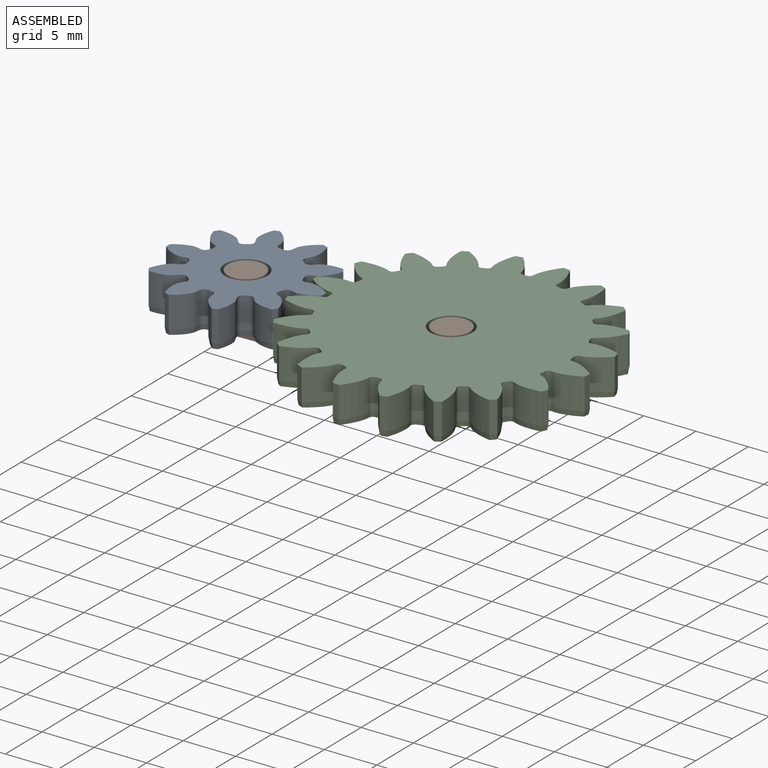
[diagram: assembled view]
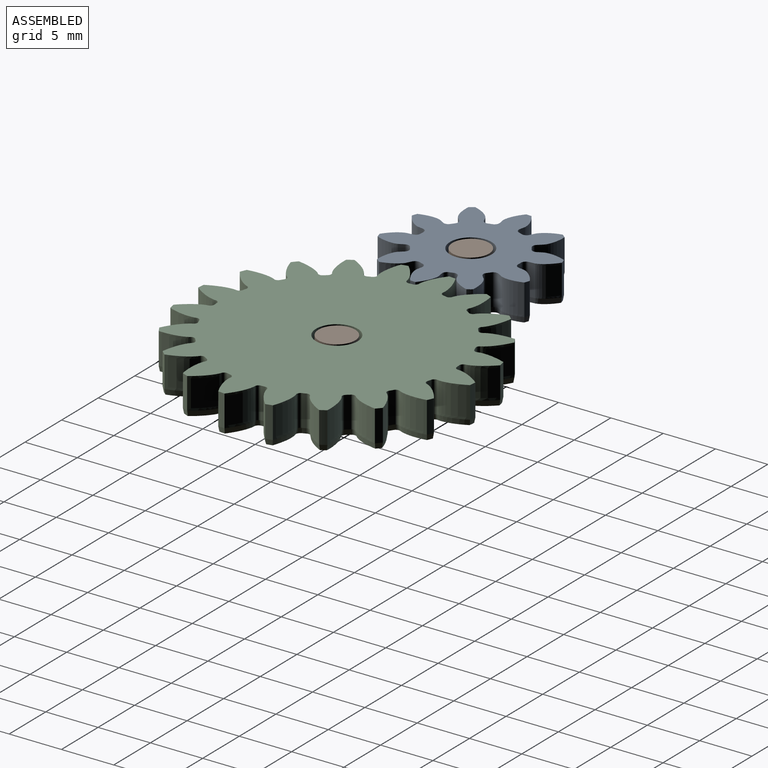
[diagram: assembled view, second angle]
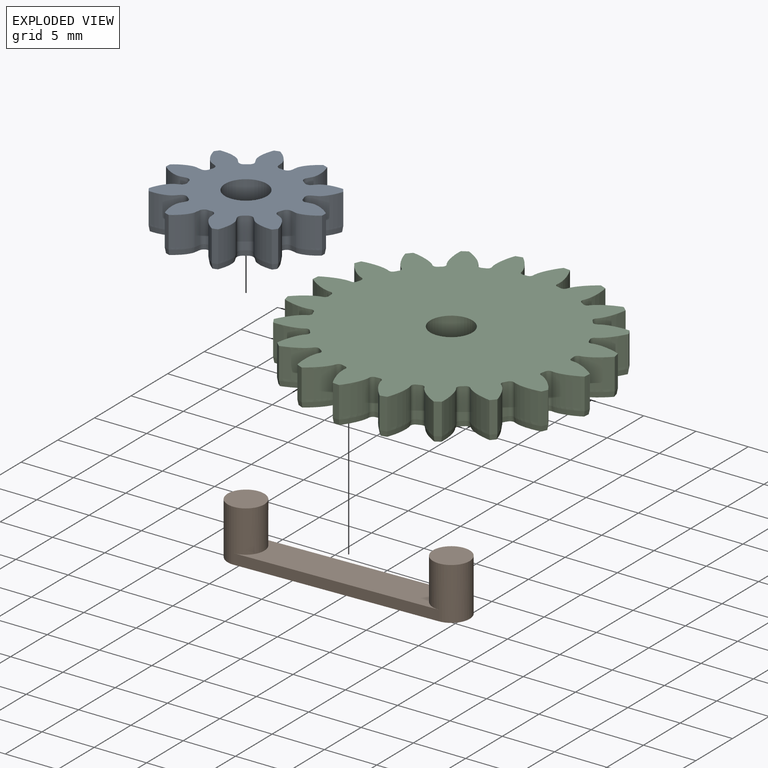
[diagram: exploded view]
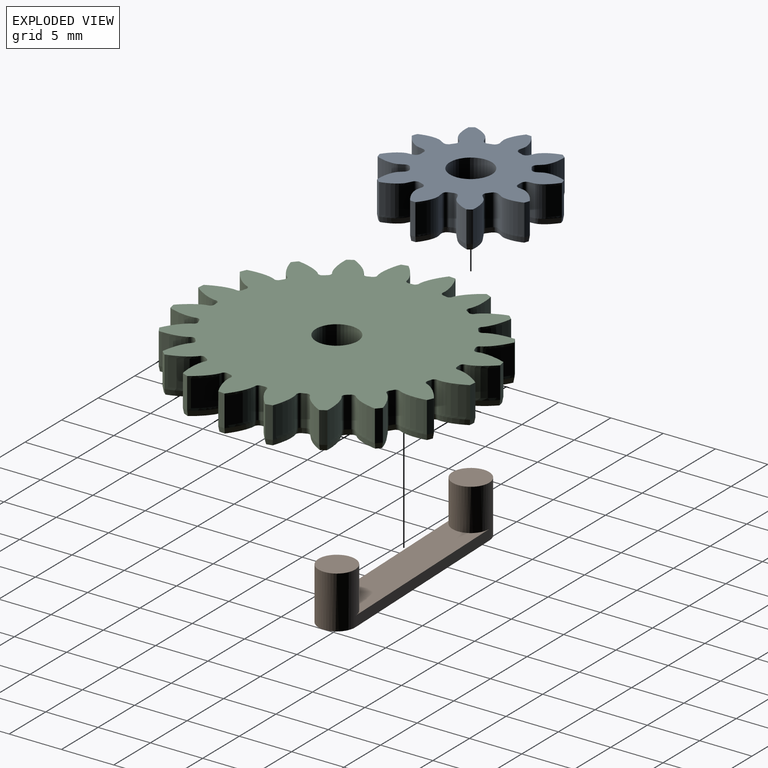
[diagram: exploded view, second angle]
ASSEMBLY  parts=3 mates=2
PART A: 124 faces, bbox 14.9x3.8x15.5 mm
  f0: cylinder r=7.62mm len=3mm, axis (0,1,0), area 1.6mm2, adj f9,f52,f59,f64
  f1: cylinder r=7.62mm len=3mm, axis (0,1,0), area 1.6mm2, adj f9,f12,f54,f70
  f2: cylinder r=7.62mm len=3mm, axis (0,1,0), area 1.6mm2, adj f9,f42,f49,f112
  f3: cylinder r=7.62mm len=3mm, axis (0,1,0), area 1.6mm2, adj f9,f44,f57,f118
  f4: cylinder r=7.62mm len=3mm, axis (0,1,0), area 1.6mm2, adj f9,f32,f39,f88
  f5: cylinder r=7.62mm len=3mm, axis (0,1,0), area 1.6mm2, adj f9,f27,f34,f94
  f6: cylinder r=7.62mm len=3mm, axis (0,1,0), area 1.6mm2, adj f9,f22,f29,f100
  f7: cylinder r=7.62mm len=3mm, axis (0,1,0), area 1.6mm2, adj f9,f24,f47,f106
  f8: cylinder r=7.62mm len=3mm, axis (0,1,0), area 1.6mm2, adj f9,f19,f37,f82
  f9: plane 15.27x14.68mm, normal (0,-1,0), area 109mm2, adj f0,f1,f2,f3,f4,f5,f6,f7
  f10: cylinder r=2mm len=4mm, axis (0,1,0), area 37.7mm2, adj f9,f122
  f11: cylinder r=7.62mm len=3mm, axis (0,1,0), area 1.6mm2, adj f9,f14,f17,f76
  f12: extruded ~3x2.16mm, area 8.2mm2, adj f1,f9,f15,f71
  f13: cylinder r=4.76mm len=3mm, axis (0,1,0), area 1.1mm2, adj f9,f15,f16,f73
  f14: extruded ~3x2.16mm, area 8.2mm2, adj f9,f11,f16,f75
  f15: cylinder r=0.46mm len=3mm, axis (0,1,0), area 2mm2, adj f9,f12,f13,f72
  f16: cylinder r=0.46mm len=3mm, axis (0,1,0), area 2mm2, adj f9,f13,f14,f74
  f17: extruded ~3x2.6mm, area 8.2mm2, adj f9,f11,f20,f77
  f18: cylinder r=4.76mm len=3mm, axis (0,1,0), area 1.1mm2, adj f9,f20,f21,f79
  f19: extruded ~3x2.44mm, area 8.2mm2, adj f8,f9,f21,f81
  f20: cylinder r=0.46mm len=3mm, axis (0,1,0), area 2mm2, adj f9,f17,f18,f78
  f21: cylinder r=0.46mm len=3mm, axis (0,1,0), area 2mm2, adj f9,f18,f19,f80
  f22: extruded ~3x2.16mm, area 8.2mm2, adj f6,f9,f25,f101
  f23: cylinder r=4.76mm len=3mm, axis (0,1,0), area 1.1mm2, adj f9,f25,f26,f103
  f24: extruded ~3x2.16mm, area 8.2mm2, adj f7,f9,f26,f105
  f25: cylinder r=0.46mm len=3mm, axis (0,1,0), area 2mm2, adj f9,f22,f23,f102
  f26: cylinder r=0.46mm len=3mm, axis (0,1,0), area 2mm2, adj f9,f23,f24,f104
  f27: extruded ~3x2.44mm, area 8.2mm2, adj f5,f9,f30,f95
  f28: cylinder r=4.76mm len=3mm, axis (0,1,0), area 1.1mm2, adj f9,f30,f31,f97
  f29: extruded ~3x2.6mm, area 8.2mm2, adj f6,f9,f31,f99
  f30: cylinder r=0.46mm len=3mm, axis (0,1,0), area 2mm2, adj f9,f27,f28,f96
  f31: cylinder r=0.46mm len=3mm, axis (0,1,0), area 2mm2, adj f9,f28,f29,f98
  f32: extruded ~3x2.5mm, area 8.2mm2, adj f4,f9,f35,f89
  f33: cylinder r=4.76mm len=3mm, axis (0,1,0), area 1.1mm2, adj f9,f35,f36,f91
  f34: extruded ~3x2.05mm, area 8.2mm2, adj f5,f9,f36,f93
  f35: cylinder r=0.46mm len=3mm, axis (0,1,0), area 2mm2, adj f9,f32,f33,f90
  f36: cylinder r=0.46mm len=3mm, axis (0,1,0), area 2mm2, adj f9,f33,f34,f92
  f37: extruded ~3x2.05mm, area 8.2mm2, adj f8,f9,f40,f83
  f38: cylinder r=4.76mm len=3mm, axis (0,1,0), area 1.1mm2, adj f9,f40,f41,f85
  f39: extruded ~3x2.5mm, area 8.2mm2, adj f4,f9,f41,f87
  f40: cylinder r=0.46mm len=3mm, axis (0,1,0), area 2mm2, adj f9,f37,f38,f84
  f41: cylinder r=0.46mm len=3mm, axis (0,1,0), area 2mm2, adj f9,f38,f39,f86
  f42: extruded ~3x2.05mm, area 8.2mm2, adj f2,f9,f45,f113
  f43: cylinder r=4.76mm len=3mm, axis (0,1,0), area 1.1mm2, adj f9,f45,f46,f115
  f44: extruded ~3x2.5mm, area 8.2mm2, adj f3,f9,f46,f117
  f45: cylinder r=0.46mm len=3mm, axis (0,1,0), area 2mm2, adj f9,f42,f43,f114
  f46: cylinder r=0.46mm len=3mm, axis (0,1,0), area 2mm2, adj f9,f43,f44,f116
  f47: extruded ~3x2.6mm, area 8.2mm2, adj f7,f9,f50,f107
  f48: cylinder r=4.76mm len=3mm, axis (0,1,0), area 1.1mm2, adj f9,f50,f51,f109
  f49: extruded ~3x2.44mm, area 8.2mm2, adj f2,f9,f51,f111
  f50: cylinder r=0.46mm len=3mm, axis (0,1,0), area 2mm2, adj f9,f47,f48,f108
  f51: cylinder r=0.46mm len=3mm, axis (0,1,0), area 2mm2, adj f9,f48,f49,f110
  f52: extruded ~3x2.44mm, area 8.2mm2, adj f0,f9,f55,f65
  f53: cylinder r=4.76mm len=3mm, axis (0,1,0), area 1.1mm2, adj f9,f55,f56,f67
  f54: extruded ~3x2.6mm, area 8.2mm2, adj f1,f9,f56,f69
  f55: cylinder r=0.46mm len=3mm, axis (0,1,0), area 2mm2, adj f9,f52,f53,f66
  f56: cylinder r=0.46mm len=3mm, axis (0,1,0), area 2mm2, adj f9,f53,f54,f68
  f57: extruded ~3x2.5mm, area 8.2mm2, adj f3,f9,f60,f119
  f58: cylinder r=4.76mm len=3mm, axis (0,1,0), area 1.1mm2, adj f9,f60,f61,f121
  f59: extruded ~3x2.05mm, area 8.2mm2, adj f0,f9,f61,f63
  f60: cylinder r=0.46mm len=3mm, axis (0,1,0), area 2mm2, adj f9,f57,f58,f120
  f61: cylinder r=0.46mm len=3mm, axis (0,1,0), area 2mm2, adj f9,f58,f59,f62
  f62: cone r=0.46mm half-angle=10deg, axis (0,1,0), area 0.4mm2, adj f61,f63,f121,f123
  f63: bspline ~2.42x2.09mm, area 1.4mm2, adj f59,f62,f64,f123
  f64: cone r=7.62mm half-angle=10deg, axis (0,-1,0), area 0.2mm2, adj f0,f63,f65,f123
  f65: bspline ~2.91x1.3mm, area 1.4mm2, adj f52,f64,f66,f123
  f66: cone r=0.46mm half-angle=10deg, axis (0,1,0), area 0.4mm2, adj f55,f65,f67,f123
  f67: cone r=4.76mm half-angle=10deg, axis (0,-1,0), area 0.2mm2, adj f53,f66,f68,f123
  f68: cone r=0.46mm half-angle=10deg, axis (0,1,0), area 0.4mm2, adj f56,f67,f69,f123
  f69: bspline ~3.14x0.69mm, area 1.4mm2, adj f54,f68,f70,f123
  f70: cone r=7.62mm half-angle=10deg, axis (0,-1,0), area 0.2mm2, adj f1,f69,f71,f123
  f71: bspline ~2.18x1.51mm, area 1.4mm2, adj f12,f70,f72,f123
  f72: cone r=0.46mm half-angle=10deg, axis (0,1,0), area 0.4mm2, adj f15,f71,f73,f123
  f73: cone r=4.76mm half-angle=10deg, axis (0,-1,0), area 0.2mm2, adj f13,f72,f74,f123
  f74: cone r=0.46mm half-angle=10deg, axis (0,1,0), area 0.4mm2, adj f16,f73,f75,f123
  f75: bspline ~2.18x1.51mm, area 1.4mm2, adj f14,f74,f76,f123
  f76: cone r=7.62mm half-angle=10deg, axis (0,-1,0), area 0.2mm2, adj f11,f75,f77,f123
  f77: bspline ~3.14x0.69mm, area 1.4mm2, adj f17,f76,f78,f123
  f78: cone r=0.46mm half-angle=10deg, axis (0,1,0), area 0.4mm2, adj f20,f77,f79,f123
  f79: cone r=4.76mm half-angle=10deg, axis (0,-1,0), area 0.2mm2, adj f18,f78,f80,f123
  f80: cone r=0.46mm half-angle=10deg, axis (0,1,0), area 0.4mm2, adj f21,f79,f81,f123
  f81: bspline ~2.91x1.3mm, area 1.4mm2, adj f19,f80,f82,f123
  f82: cone r=7.62mm half-angle=10deg, axis (0,-1,0), area 0.2mm2, adj f8,f81,f83,f123
  f83: bspline ~2.42x2.09mm, area 1.4mm2, adj f37,f82,f84,f123
  f84: cone r=0.46mm half-angle=10deg, axis (0,1,0), area 0.4mm2, adj f40,f83,f85,f123
  f85: cone r=4.76mm half-angle=10deg, axis (0,-1,0), area 0.2mm2, adj f38,f84,f86,f123
  f86: cone r=0.46mm half-angle=10deg, axis (0,1,0), area 0.4mm2, adj f41,f85,f87,f123
  f87: bspline ~2.5x0.9mm, area 1.4mm2, adj f39,f86,f88,f123
  f88: cone r=7.62mm half-angle=10deg, axis (0,-1,0), area 0.2mm2, adj f4,f87,f89,f123
  f89: bspline ~2.5x0.9mm, area 1.4mm2, adj f32,f88,f90,f123
  f90: cone r=0.46mm half-angle=10deg, axis (0,1,0), area 0.4mm2, adj f35,f89,f91,f123
  f91: cone r=4.76mm half-angle=10deg, axis (0,-1,0), area 0.2mm2, adj f33,f90,f92,f123
  f92: cone r=0.46mm half-angle=10deg, axis (0,1,0), area 0.4mm2, adj f36,f91,f93,f123
  f93: bspline ~2.42x2.09mm, area 1.4mm2, adj f34,f92,f94,f123
  f94: cone r=7.62mm half-angle=10deg, axis (0,-1,0), area 0.2mm2, adj f5,f93,f95,f123
  f95: bspline ~2.91x1.3mm, area 1.4mm2, adj f27,f94,f96,f123
  f96: cone r=0.46mm half-angle=10deg, axis (0,1,0), area 0.4mm2, adj f30,f95,f97,f123
  f97: cone r=4.76mm half-angle=10deg, axis (0,-1,0), area 0.2mm2, adj f28,f96,f98,f123
  f98: cone r=0.46mm half-angle=10deg, axis (0,1,0), area 0.4mm2, adj f31,f97,f99,f123
  f99: bspline ~3.14x0.69mm, area 1.4mm2, adj f29,f98,f100,f123
  f100: cone r=7.62mm half-angle=10deg, axis (0,-1,0), area 0.2mm2, adj f6,f99,f101,f123
  f101: bspline ~2.18x1.51mm, area 1.4mm2, adj f22,f100,f102,f123
  f102: cone r=0.46mm half-angle=10deg, axis (0,1,0), area 0.4mm2, adj f25,f101,f103,f123
  f103: cone r=4.76mm half-angle=10deg, axis (0,-1,0), area 0.2mm2, adj f23,f102,f104,f123
  f104: cone r=0.46mm half-angle=10deg, axis (0,1,0), area 0.4mm2, adj f26,f103,f105,f123
  f105: bspline ~2.18x1.51mm, area 1.4mm2, adj f24,f104,f106,f123
  f106: cone r=7.62mm half-angle=10deg, axis (0,-1,0), area 0.2mm2, adj f7,f105,f107,f123
  f107: bspline ~3.14x0.69mm, area 1.4mm2, adj f47,f106,f108,f123
  f108: cone r=0.46mm half-angle=10deg, axis (0,1,0), area 0.4mm2, adj f50,f107,f109,f123
  f109: cone r=4.76mm half-angle=10deg, axis (0,-1,0), area 0.2mm2, adj f48,f108,f110,f123
  f110: cone r=0.46mm half-angle=10deg, axis (0,1,0), area 0.4mm2, adj f51,f109,f111,f123
  f111: bspline ~2.91x1.3mm, area 1.4mm2, adj f49,f110,f112,f123
  f112: cone r=7.62mm half-angle=10deg, axis (0,-1,0), area 0.2mm2, adj f2,f111,f113,f123
  f113: bspline ~2.42x2.09mm, area 1.4mm2, adj f42,f112,f114,f123
  f114: cone r=0.46mm half-angle=10deg, axis (0,1,0), area 0.4mm2, adj f45,f113,f115,f123
  f115: cone r=4.76mm half-angle=10deg, axis (0,-1,0), area 0.2mm2, adj f43,f114,f116,f123
  f116: cone r=0.46mm half-angle=10deg, axis (0,1,0), area 0.4mm2, adj f46,f115,f117,f123
  f117: bspline ~2.5x0.9mm, area 1.4mm2, adj f44,f116,f118,f123
  f118: cone r=7.62mm half-angle=10deg, axis (0,-1,0), area 0.2mm2, adj f3,f117,f119,f123
  f119: bspline ~2.5x0.9mm, area 1.4mm2, adj f57,f118,f120,f123
  f120: cone r=0.46mm half-angle=10deg, axis (0,1,0), area 0.4mm2, adj f60,f119,f121,f123
  f121: cone r=4.76mm half-angle=10deg, axis (0,-1,0), area 0.2mm2, adj f58,f62,f120,f123
  f122: cone r=2mm half-angle=10deg, axis (0,1,0), area 6.5mm2, adj f10,f123
  f123: plane 15.27x14.66mm, normal (0,1,0), area 101mm2, adj f62,f63,f64,f65,f66,f67,f68,f69
PART B: 8 faces, bbox 22.7x3.5x5 mm
  f0: plane 19.2x1mm, normal (0,-1,0), area 19.2mm2, adj f2,f3,f4,f6
  f1: plane 19.2x1mm, normal (0,1,0), area 19.2mm2, adj f2,f3,f4,f6
  f2: plane 19.2x3.5mm, normal (0,0,1), area 57.6mm2, adj f0,f1,f4,f6
  f3: plane 22.7x3.5mm, normal (0,0,-1), area 76.8mm2, adj f0,f1,f4,f6
  f4: cylinder r=1.75mm len=5mm, axis (0,0,-1), area 49.5mm2, adj f0,f1,f2,f3,f5
  f5: plane 3.5x3.5mm, normal (0,0,1), area 9.6mm2, adj f4
  f6: cylinder r=1.75mm len=5mm, axis (0,0,-1), area 49.5mm2, adj f0,f1,f2,f3,f7
  f7: plane 3.5x3.5mm, normal (0,0,1), area 9.6mm2, adj f6
PART C: 244 faces, bbox 28x3.8x28 mm
  f0: extruded ~3x2.4mm, area 8.3mm2, adj f80,f81,f82,f124
  f1: cylinder r=11.11mm len=3mm, axis (0,1,0), area 1.1mm2, adj f81,f82,f83,f122
  f2: extruded ~3x2.4mm, area 8.3mm2, adj f3,f81,f83,f240
  f3: cylinder r=13.97mm len=3mm, axis (0,1,0), area 1.9mm2, adj f2,f4,f81,f239
  f4: extruded ~3x2.68mm, area 8.3mm2, adj f3,f81,f84,f238
  f5: cylinder r=11.11mm len=3mm, axis (0,1,0), area 1.1mm2, adj f81,f84,f85,f236
  f6: extruded ~3x1.99mm, area 8.3mm2, adj f7,f81,f85,f234
  f7: cylinder r=13.97mm len=3mm, axis (0,1,0), area 1.9mm2, adj f6,f8,f81,f233
  f8: extruded ~3x2.71mm, area 8.3mm2, adj f7,f81,f86,f232
  f9: cylinder r=11.11mm len=3mm, axis (0,1,0), area 1.1mm2, adj f81,f86,f87,f230
  f10: extruded ~3x2.47mm, area 8.3mm2, adj f11,f81,f87,f228
  f11: cylinder r=13.97mm len=3mm, axis (0,1,0), area 1.9mm2, adj f10,f12,f81,f227
  f12: extruded ~3x2.47mm, area 8.3mm2, adj f11,f81,f88,f226
  f13: cylinder r=11.11mm len=3mm, axis (0,1,0), area 1.1mm2, adj f81,f88,f89,f224
  f14: extruded ~3x2.71mm, area 8.3mm2, adj f15,f81,f89,f222
  f15: cylinder r=13.97mm len=3mm, axis (0,1,0), area 1.9mm2, adj f14,f16,f81,f221
  f16: extruded ~3x1.99mm, area 8.3mm2, adj f15,f81,f90,f220
  f17: cylinder r=11.11mm len=3mm, axis (0,1,0), area 1.1mm2, adj f81,f90,f91,f218
  f18: extruded ~3x2.68mm, area 8.3mm2, adj f19,f81,f91,f216
  f19: cylinder r=13.97mm len=3mm, axis (0,1,0), area 1.9mm2, adj f18,f20,f81,f215
  f20: extruded ~3x2.4mm, area 8.3mm2, adj f19,f81,f92,f214
  f21: cylinder r=11.11mm len=3mm, axis (0,1,0), area 1.1mm2, adj f81,f92,f93,f212
  f22: extruded ~3x2.4mm, area 8.3mm2, adj f23,f81,f93,f210
  f23: cylinder r=13.97mm len=3mm, axis (0,1,0), area 1.9mm2, adj f22,f24,f81,f209
  f24: extruded ~3x2.68mm, area 8.3mm2, adj f23,f81,f94,f208
  f25: cylinder r=11.11mm len=3mm, axis (0,1,0), area 1.1mm2, adj f81,f94,f95,f206
  f26: extruded ~3x1.99mm, area 8.3mm2, adj f27,f81,f95,f204
  f27: cylinder r=13.97mm len=3mm, axis (0,1,0), area 1.9mm2, adj f26,f28,f81,f203
  f28: extruded ~3x2.71mm, area 8.3mm2, adj f27,f81,f96,f202
  f29: cylinder r=11.11mm len=3mm, axis (0,1,0), area 1.1mm2, adj f81,f96,f97,f200
  f30: extruded ~3x2.47mm, area 8.3mm2, adj f31,f81,f97,f198
  f31: cylinder r=13.97mm len=3mm, axis (0,1,0), area 1.9mm2, adj f30,f32,f81,f197
  f32: extruded ~3x2.47mm, area 8.3mm2, adj f31,f81,f98,f196
  f33: cylinder r=11.11mm len=3mm, axis (0,1,0), area 1.1mm2, adj f81,f98,f99,f194
  f34: extruded ~3x2.71mm, area 8.3mm2, adj f35,f81,f99,f192
  f35: cylinder r=13.97mm len=3mm, axis (0,1,0), area 1.9mm2, adj f34,f36,f81,f191
  f36: extruded ~3x1.99mm, area 8.3mm2, adj f35,f81,f100,f190
  f37: cylinder r=11.11mm len=3mm, axis (0,1,0), area 1.1mm2, adj f81,f100,f101,f188
  f38: extruded ~3x2.68mm, area 8.3mm2, adj f39,f81,f101,f186
  f39: cylinder r=13.97mm len=3mm, axis (0,1,0), area 1.9mm2, adj f38,f40,f81,f185
  f40: extruded ~3x2.4mm, area 8.3mm2, adj f39,f81,f102,f184
  f41: cylinder r=11.11mm len=3mm, axis (0,1,0), area 1.1mm2, adj f81,f102,f103,f182
  f42: extruded ~3x2.4mm, area 8.3mm2, adj f43,f81,f103,f180
  f43: cylinder r=13.97mm len=3mm, axis (0,1,0), area 1.9mm2, adj f42,f44,f81,f179
  f44: extruded ~3x2.68mm, area 8.3mm2, adj f43,f81,f104,f178
  f45: cylinder r=11.11mm len=3mm, axis (0,1,0), area 1.1mm2, adj f81,f104,f105,f176
  f46: extruded ~3x1.99mm, area 8.3mm2, adj f47,f81,f105,f174
  f47: cylinder r=13.97mm len=3mm, axis (0,1,0), area 1.9mm2, adj f46,f48,f81,f173
  f48: extruded ~3x2.71mm, area 8.3mm2, adj f47,f81,f106,f172
  f49: cylinder r=11.11mm len=3mm, axis (0,1,0), area 1.1mm2, adj f81,f106,f107,f170
  f50: extruded ~3x2.47mm, area 8.3mm2, adj f51,f81,f107,f168
  f51: cylinder r=13.97mm len=3mm, axis (0,1,0), area 1.9mm2, adj f50,f52,f81,f167
  f52: extruded ~3x2.47mm, area 8.3mm2, adj f51,f81,f108,f166
  f53: cylinder r=11.11mm len=3mm, axis (0,1,0), area 1.1mm2, adj f81,f108,f109,f164
  f54: extruded ~3x2.71mm, area 8.3mm2, adj f55,f81,f109,f162
  f55: cylinder r=13.97mm len=3mm, axis (0,1,0), area 1.9mm2, adj f54,f56,f81,f161
  f56: extruded ~3x1.99mm, area 8.3mm2, adj f55,f81,f110,f160
  f57: cylinder r=11.11mm len=3mm, axis (0,1,0), area 1.1mm2, adj f81,f110,f111,f158
  f58: extruded ~3x2.68mm, area 8.3mm2, adj f59,f81,f111,f156
  f59: cylinder r=13.97mm len=3mm, axis (0,1,0), area 1.9mm2, adj f58,f60,f81,f155
  f60: extruded ~3x2.4mm, area 8.3mm2, adj f59,f81,f112,f154
  f61: cylinder r=11.11mm len=3mm, axis (0,1,0), area 1.1mm2, adj f81,f112,f113,f152
  f62: extruded ~3x2.4mm, area 8.3mm2, adj f63,f81,f113,f150
  f63: cylinder r=13.97mm len=3mm, axis (0,1,0), area 1.9mm2, adj f62,f64,f81,f149
  f64: extruded ~3x2.68mm, area 8.3mm2, adj f63,f81,f114,f148
  f65: cylinder r=11.11mm len=3mm, axis (0,1,0), area 1.1mm2, adj f81,f114,f115,f146
  f66: extruded ~3x1.99mm, area 8.3mm2, adj f67,f81,f115,f144
  f67: cylinder r=13.97mm len=3mm, axis (0,1,0), area 1.9mm2, adj f66,f68,f81,f143
  f68: extruded ~3x2.71mm, area 8.3mm2, adj f67,f81,f116,f142
  f69: cylinder r=11.11mm len=3mm, axis (0,1,0), area 1.1mm2, adj f81,f116,f117,f140
  f70: extruded ~3x2.47mm, area 8.3mm2, adj f71,f81,f117,f138
  f71: cylinder r=13.97mm len=3mm, axis (0,1,0), area 1.9mm2, adj f70,f72,f81,f137
  f72: extruded ~3x2.47mm, area 8.3mm2, adj f71,f81,f118,f136
  f73: cylinder r=11.11mm len=3mm, axis (0,1,0), area 1.1mm2, adj f81,f118,f119,f134
  f74: extruded ~3x2.71mm, area 8.3mm2, adj f75,f81,f119,f132
  f75: cylinder r=13.97mm len=3mm, axis (0,1,0), area 1.9mm2, adj f74,f76,f81,f131
  f76: extruded ~3x1.99mm, area 8.3mm2, adj f75,f81,f120,f130
  f77: cylinder r=11.11mm len=3mm, axis (0,1,0), area 1.1mm2, adj f81,f120,f121,f128
  f78: extruded ~3x2.68mm, area 8.3mm2, adj f80,f81,f121,f126
  f79: cylinder r=2mm len=4mm, axis (0,1,0), area 37.7mm2, adj f81,f241
  f80: cylinder r=13.97mm len=3mm, axis (0,1,0), area 1.9mm2, adj f0,f78,f81,f125
  f81: plane 27.69x27.69mm, normal (0,-1,0), area 486.4mm2, adj f0,f1,f2,f3,f4,f5,f6,f7
  f82: cylinder r=0.36mm len=3mm, axis (0,1,0), area 1.7mm2, adj f0,f1,f81,f123
  f83: cylinder r=0.36mm len=3mm, axis (0,1,0), area 1.7mm2, adj f1,f2,f81,f242
  f84: cylinder r=0.36mm len=3mm, axis (0,1,0), area 1.7mm2, adj f4,f5,f81,f237
  f85: cylinder r=0.36mm len=3mm, axis (0,1,0), area 1.7mm2, adj f5,f6,f81,f235
  f86: cylinder r=0.36mm len=3mm, axis (0,1,0), area 1.7mm2, adj f8,f9,f81,f231
  f87: cylinder r=0.36mm len=3mm, axis (0,1,0), area 1.7mm2, adj f9,f10,f81,f229
  f88: cylinder r=0.36mm len=3mm, axis (0,1,0), area 1.7mm2, adj f12,f13,f81,f225
  f89: cylinder r=0.36mm len=3mm, axis (0,1,0), area 1.7mm2, adj f13,f14,f81,f223
  f90: cylinder r=0.36mm len=3mm, axis (0,1,0), area 1.7mm2, adj f16,f17,f81,f219
  f91: cylinder r=0.36mm len=3mm, axis (0,1,0), area 1.7mm2, adj f17,f18,f81,f217
  f92: cylinder r=0.36mm len=3mm, axis (0,1,0), area 1.7mm2, adj f20,f21,f81,f213
  f93: cylinder r=0.36mm len=3mm, axis (0,1,0), area 1.7mm2, adj f21,f22,f81,f211
  f94: cylinder r=0.36mm len=3mm, axis (0,1,0), area 1.7mm2, adj f24,f25,f81,f207
  f95: cylinder r=0.36mm len=3mm, axis (0,1,0), area 1.7mm2, adj f25,f26,f81,f205
  f96: cylinder r=0.36mm len=3mm, axis (0,1,0), area 1.7mm2, adj f28,f29,f81,f201
  f97: cylinder r=0.36mm len=3mm, axis (0,1,0), area 1.7mm2, adj f29,f30,f81,f199
  f98: cylinder r=0.36mm len=3mm, axis (0,1,0), area 1.7mm2, adj f32,f33,f81,f195
  f99: cylinder r=0.36mm len=3mm, axis (0,1,0), area 1.7mm2, adj f33,f34,f81,f193
  f100: cylinder r=0.36mm len=3mm, axis (0,1,0), area 1.7mm2, adj f36,f37,f81,f189
  f101: cylinder r=0.36mm len=3mm, axis (0,1,0), area 1.7mm2, adj f37,f38,f81,f187
  f102: cylinder r=0.36mm len=3mm, axis (0,1,0), area 1.7mm2, adj f40,f41,f81,f183
  f103: cylinder r=0.36mm len=3mm, axis (0,1,0), area 1.7mm2, adj f41,f42,f81,f181
  f104: cylinder r=0.36mm len=3mm, axis (0,1,0), area 1.7mm2, adj f44,f45,f81,f177
  f105: cylinder r=0.36mm len=3mm, axis (0,1,0), area 1.7mm2, adj f45,f46,f81,f175
  f106: cylinder r=0.36mm len=3mm, axis (0,1,0), area 1.7mm2, adj f48,f49,f81,f171
  f107: cylinder r=0.36mm len=3mm, axis (0,1,0), area 1.7mm2, adj f49,f50,f81,f169
  f108: cylinder r=0.36mm len=3mm, axis (0,1,0), area 1.7mm2, adj f52,f53,f81,f165
  f109: cylinder r=0.36mm len=3mm, axis (0,1,0), area 1.7mm2, adj f53,f54,f81,f163
  f110: cylinder r=0.36mm len=3mm, axis (0,1,0), area 1.7mm2, adj f56,f57,f81,f159
  f111: cylinder r=0.36mm len=3mm, axis (0,1,0), area 1.7mm2, adj f57,f58,f81,f157
  f112: cylinder r=0.36mm len=3mm, axis (0,1,0), area 1.7mm2, adj f60,f61,f81,f153
  f113: cylinder r=0.36mm len=3mm, axis (0,1,0), area 1.7mm2, adj f61,f62,f81,f151
  f114: cylinder r=0.36mm len=3mm, axis (0,1,0), area 1.7mm2, adj f64,f65,f81,f147
  f115: cylinder r=0.36mm len=3mm, axis (0,1,0), area 1.7mm2, adj f65,f66,f81,f145
  f116: cylinder r=0.36mm len=3mm, axis (0,1,0), area 1.7mm2, adj f68,f69,f81,f141
  f117: cylinder r=0.36mm len=3mm, axis (0,1,0), area 1.7mm2, adj f69,f70,f81,f139
  f118: cylinder r=0.36mm len=3mm, axis (0,1,0), area 1.7mm2, adj f72,f73,f81,f135
  f119: cylinder r=0.36mm len=3mm, axis (0,1,0), area 1.7mm2, adj f73,f74,f81,f133
  f120: cylinder r=0.36mm len=3mm, axis (0,1,0), area 1.7mm2, adj f76,f77,f81,f129
  f121: cylinder r=0.36mm len=3mm, axis (0,1,0), area 1.7mm2, adj f77,f78,f81,f127
  f122: cone r=11.11mm half-angle=10deg, axis (0,-1,0), area 0.2mm2, adj f1,f123,f242,f243
  f123: cone r=0.36mm half-angle=10deg, axis (0,1,0), area 0.3mm2, adj f82,f122,f124,f243
  f124: bspline ~2.6x1.46mm, area 1.4mm2, adj f0,f123,f125,f243
  f125: cone r=13.97mm half-angle=10deg, axis (0,-1,0), area 0.3mm2, adj f80,f124,f126,f243
  f126: bspline ~2.9x0.69mm, area 1.4mm2, adj f78,f125,f127,f243
  f127: cone r=0.36mm half-angle=10deg, axis (0,1,0), area 0.3mm2, adj f121,f126,f128,f243
  f128: cone r=11.11mm half-angle=10deg, axis (0,-1,0), area 0.2mm2, adj f77,f127,f129,f243
  f129: cone r=0.36mm half-angle=10deg, axis (0,1,0), area 0.3mm2, adj f120,f128,f130,f243
  f130: bspline ~2.04x1.91mm, area 1.4mm2, adj f76,f129,f131,f243
  f131: cone r=13.97mm half-angle=10deg, axis (0,-1,0), area 0.3mm2, adj f75,f130,f132,f243
  f132: bspline ~2.71x0.6mm, area 1.4mm2, adj f74,f131,f133,f243
  f133: cone r=0.36mm half-angle=10deg, axis (0,1,0), area 0.3mm2, adj f119,f132,f134,f243
  f134: cone r=11.11mm half-angle=10deg, axis (0,-1,0), area 0.2mm2, adj f73,f133,f135,f243
  f135: cone r=0.36mm half-angle=10deg, axis (0,1,0), area 0.3mm2, adj f118,f134,f136,f243
  f136: bspline ~2.49x1.23mm, area 1.4mm2, adj f72,f135,f137,f243
  f137: cone r=13.97mm half-angle=10deg, axis (0,-1,0), area 0.3mm2, adj f71,f136,f138,f243
  f138: bspline ~2.49x1.23mm, area 1.4mm2, adj f70,f137,f139,f243
  f139: cone r=0.36mm half-angle=10deg, axis (0,1,0), area 0.3mm2, adj f117,f138,f140,f243
  f140: cone r=11.11mm half-angle=10deg, axis (0,-1,0), area 0.2mm2, adj f69,f139,f141,f243
  f141: cone r=0.36mm half-angle=10deg, axis (0,1,0), area 0.3mm2, adj f116,f140,f142,f243
  f142: bspline ~2.71x0.6mm, area 1.4mm2, adj f68,f141,f143,f243
  f143: cone r=13.97mm half-angle=10deg, axis (0,-1,0), area 0.3mm2, adj f67,f142,f144,f243
  f144: bspline ~2.04x1.91mm, area 1.4mm2, adj f66,f143,f145,f243
  f145: cone r=0.36mm half-angle=10deg, axis (0,1,0), area 0.3mm2, adj f115,f144,f146,f243
  f146: cone r=11.11mm half-angle=10deg, axis (0,-1,0), area 0.2mm2, adj f65,f145,f147,f243
  f147: cone r=0.36mm half-angle=10deg, axis (0,1,0), area 0.3mm2, adj f114,f146,f148,f243
  f148: bspline ~2.9x0.69mm, area 1.4mm2, adj f64,f147,f149,f243
  f149: cone r=13.97mm half-angle=10deg, axis (0,-1,0), area 0.3mm2, adj f63,f148,f150,f243
  f150: bspline ~2.6x1.46mm, area 1.4mm2, adj f62,f149,f151,f243
  f151: cone r=0.36mm half-angle=10deg, axis (0,1,0), area 0.3mm2, adj f113,f150,f152,f243
  f152: cone r=11.11mm half-angle=10deg, axis (0,-1,0), area 0.2mm2, adj f61,f151,f153,f243
  f153: cone r=0.36mm half-angle=10deg, axis (0,1,0), area 0.3mm2, adj f112,f152,f154,f243
  f154: bspline ~2.6x1.46mm, area 1.4mm2, adj f60,f153,f155,f243
  f155: cone r=13.97mm half-angle=10deg, axis (0,-1,0), area 0.3mm2, adj f59,f154,f156,f243
  f156: bspline ~2.9x0.69mm, area 1.4mm2, adj f58,f155,f157,f243
  f157: cone r=0.36mm half-angle=10deg, axis (0,1,0), area 0.3mm2, adj f111,f156,f158,f243
  f158: cone r=11.11mm half-angle=10deg, axis (0,-1,0), area 0.2mm2, adj f57,f157,f159,f243
  f159: cone r=0.36mm half-angle=10deg, axis (0,1,0), area 0.3mm2, adj f110,f158,f160,f243
  f160: bspline ~2.04x1.91mm, area 1.4mm2, adj f56,f159,f161,f243
  f161: cone r=13.97mm half-angle=10deg, axis (0,-1,0), area 0.3mm2, adj f55,f160,f162,f243
  f162: bspline ~2.71x0.6mm, area 1.4mm2, adj f54,f161,f163,f243
  f163: cone r=0.36mm half-angle=10deg, axis (0,1,0), area 0.3mm2, adj f109,f162,f164,f243
  f164: cone r=11.11mm half-angle=10deg, axis (0,-1,0), area 0.2mm2, adj f53,f163,f165,f243
  f165: cone r=0.36mm half-angle=10deg, axis (0,1,0), area 0.3mm2, adj f108,f164,f166,f243
  f166: bspline ~2.49x1.23mm, area 1.4mm2, adj f52,f165,f167,f243
  f167: cone r=13.97mm half-angle=10deg, axis (0,-1,0), area 0.3mm2, adj f51,f166,f168,f243
  f168: bspline ~2.49x1.23mm, area 1.4mm2, adj f50,f167,f169,f243
  f169: cone r=0.36mm half-angle=10deg, axis (0,1,0), area 0.3mm2, adj f107,f168,f170,f243
  f170: cone r=11.11mm half-angle=10deg, axis (0,-1,0), area 0.2mm2, adj f49,f169,f171,f243
  f171: cone r=0.36mm half-angle=10deg, axis (0,1,0), area 0.3mm2, adj f106,f170,f172,f243
  f172: bspline ~2.71x0.6mm, area 1.4mm2, adj f48,f171,f173,f243
  f173: cone r=13.97mm half-angle=10deg, axis (0,-1,0), area 0.3mm2, adj f47,f172,f174,f243
  f174: bspline ~2.04x1.91mm, area 1.4mm2, adj f46,f173,f175,f243
  f175: cone r=0.36mm half-angle=10deg, axis (0,1,0), area 0.3mm2, adj f105,f174,f176,f243
  f176: cone r=11.11mm half-angle=10deg, axis (0,-1,0), area 0.2mm2, adj f45,f175,f177,f243
  f177: cone r=0.36mm half-angle=10deg, axis (0,1,0), area 0.3mm2, adj f104,f176,f178,f243
  f178: bspline ~2.9x0.69mm, area 1.4mm2, adj f44,f177,f179,f243
  f179: cone r=13.97mm half-angle=10deg, axis (0,-1,0), area 0.3mm2, adj f43,f178,f180,f243
  f180: bspline ~2.6x1.46mm, area 1.4mm2, adj f42,f179,f181,f243
  f181: cone r=0.36mm half-angle=10deg, axis (0,1,0), area 0.3mm2, adj f103,f180,f182,f243
  f182: cone r=11.11mm half-angle=10deg, axis (0,-1,0), area 0.2mm2, adj f41,f181,f183,f243
  f183: cone r=0.36mm half-angle=10deg, axis (0,1,0), area 0.3mm2, adj f102,f182,f184,f243
  f184: bspline ~2.6x1.46mm, area 1.4mm2, adj f40,f183,f185,f243
  f185: cone r=13.97mm half-angle=10deg, axis (0,-1,0), area 0.3mm2, adj f39,f184,f186,f243
  f186: bspline ~2.9x0.69mm, area 1.4mm2, adj f38,f185,f187,f243
  f187: cone r=0.36mm half-angle=10deg, axis (0,1,0), area 0.3mm2, adj f101,f186,f188,f243
  f188: cone r=11.11mm half-angle=10deg, axis (0,-1,0), area 0.2mm2, adj f37,f187,f189,f243
  f189: cone r=0.36mm half-angle=10deg, axis (0,1,0), area 0.3mm2, adj f100,f188,f190,f243
  f190: bspline ~2.04x1.91mm, area 1.4mm2, adj f36,f189,f191,f243
  f191: cone r=13.97mm half-angle=10deg, axis (0,-1,0), area 0.3mm2, adj f35,f190,f192,f243
  f192: bspline ~2.71x0.6mm, area 1.4mm2, adj f34,f191,f193,f243
  f193: cone r=0.36mm half-angle=10deg, axis (0,1,0), area 0.3mm2, adj f99,f192,f194,f243
  f194: cone r=11.11mm half-angle=10deg, axis (0,-1,0), area 0.2mm2, adj f33,f193,f195,f243
  f195: cone r=0.36mm half-angle=10deg, axis (0,1,0), area 0.3mm2, adj f98,f194,f196,f243
  f196: bspline ~2.49x1.23mm, area 1.4mm2, adj f32,f195,f197,f243
  f197: cone r=13.97mm half-angle=10deg, axis (0,-1,0), area 0.3mm2, adj f31,f196,f198,f243
  f198: bspline ~2.49x1.23mm, area 1.4mm2, adj f30,f197,f199,f243
  f199: cone r=0.36mm half-angle=10deg, axis (0,1,0), area 0.3mm2, adj f97,f198,f200,f243
  f200: cone r=11.11mm half-angle=10deg, axis (0,-1,0), area 0.2mm2, adj f29,f199,f201,f243
  f201: cone r=0.36mm half-angle=10deg, axis (0,1,0), area 0.3mm2, adj f96,f200,f202,f243
  f202: bspline ~2.71x0.6mm, area 1.4mm2, adj f28,f201,f203,f243
  f203: cone r=13.97mm half-angle=10deg, axis (0,-1,0), area 0.3mm2, adj f27,f202,f204,f243
  f204: bspline ~2.04x1.91mm, area 1.4mm2, adj f26,f203,f205,f243
  f205: cone r=0.36mm half-angle=10deg, axis (0,1,0), area 0.3mm2, adj f95,f204,f206,f243
  f206: cone r=11.11mm half-angle=10deg, axis (0,-1,0), area 0.2mm2, adj f25,f205,f207,f243
  f207: cone r=0.36mm half-angle=10deg, axis (0,1,0), area 0.3mm2, adj f94,f206,f208,f243
  f208: bspline ~2.9x0.69mm, area 1.4mm2, adj f24,f207,f209,f243
  f209: cone r=13.97mm half-angle=10deg, axis (0,-1,0), area 0.3mm2, adj f23,f208,f210,f243
  f210: bspline ~2.6x1.46mm, area 1.4mm2, adj f22,f209,f211,f243
  f211: cone r=0.36mm half-angle=10deg, axis (0,1,0), area 0.3mm2, adj f93,f210,f212,f243
  f212: cone r=11.11mm half-angle=10deg, axis (0,-1,0), area 0.2mm2, adj f21,f211,f213,f243
  f213: cone r=0.36mm half-angle=10deg, axis (0,1,0), area 0.3mm2, adj f92,f212,f214,f243
  f214: bspline ~2.6x1.46mm, area 1.4mm2, adj f20,f213,f215,f243
  f215: cone r=13.97mm half-angle=10deg, axis (0,-1,0), area 0.3mm2, adj f19,f214,f216,f243
  f216: bspline ~2.9x0.69mm, area 1.4mm2, adj f18,f215,f217,f243
  f217: cone r=0.36mm half-angle=10deg, axis (0,1,0), area 0.3mm2, adj f91,f216,f218,f243
  f218: cone r=11.11mm half-angle=10deg, axis (0,-1,0), area 0.2mm2, adj f17,f217,f219,f243
  f219: cone r=0.36mm half-angle=10deg, axis (0,1,0), area 0.3mm2, adj f90,f218,f220,f243
  f220: bspline ~2.04x1.91mm, area 1.4mm2, adj f16,f219,f221,f243
  f221: cone r=13.97mm half-angle=10deg, axis (0,-1,0), area 0.3mm2, adj f15,f220,f222,f243
  f222: bspline ~2.71x0.6mm, area 1.4mm2, adj f14,f221,f223,f243
  f223: cone r=0.36mm half-angle=10deg, axis (0,1,0), area 0.3mm2, adj f89,f222,f224,f243
  f224: cone r=11.11mm half-angle=10deg, axis (0,-1,0), area 0.2mm2, adj f13,f223,f225,f243
  f225: cone r=0.36mm half-angle=10deg, axis (0,1,0), area 0.3mm2, adj f88,f224,f226,f243
  f226: bspline ~2.49x1.23mm, area 1.4mm2, adj f12,f225,f227,f243
  f227: cone r=13.97mm half-angle=10deg, axis (0,-1,0), area 0.3mm2, adj f11,f226,f228,f243
  f228: bspline ~2.49x1.23mm, area 1.4mm2, adj f10,f227,f229,f243
  f229: cone r=0.36mm half-angle=10deg, axis (0,1,0), area 0.3mm2, adj f87,f228,f230,f243
  f230: cone r=11.11mm half-angle=10deg, axis (0,-1,0), area 0.2mm2, adj f9,f229,f231,f243
  f231: cone r=0.36mm half-angle=10deg, axis (0,1,0), area 0.3mm2, adj f86,f230,f232,f243
  f232: bspline ~2.71x0.6mm, area 1.4mm2, adj f8,f231,f233,f243
  f233: cone r=13.97mm half-angle=10deg, axis (0,-1,0), area 0.3mm2, adj f7,f232,f234,f243
  f234: bspline ~2.04x1.91mm, area 1.4mm2, adj f6,f233,f235,f243
  f235: cone r=0.36mm half-angle=10deg, axis (0,1,0), area 0.3mm2, adj f85,f234,f236,f243
  f236: cone r=11.11mm half-angle=10deg, axis (0,-1,0), area 0.2mm2, adj f5,f235,f237,f243
  f237: cone r=0.36mm half-angle=10deg, axis (0,1,0), area 0.3mm2, adj f84,f236,f238,f243
  f238: bspline ~2.9x0.69mm, area 1.4mm2, adj f4,f237,f239,f243
  f239: cone r=13.97mm half-angle=10deg, axis (0,-1,0), area 0.3mm2, adj f3,f238,f240,f243
  f240: bspline ~2.6x1.46mm, area 1.4mm2, adj f2,f239,f242,f243
  f241: cone r=2mm half-angle=10deg, axis (0,1,0), area 6.5mm2, adj f79,f243
  f242: cone r=0.36mm half-angle=10deg, axis (0,1,0), area 0.3mm2, adj f83,f122,f240,f243
  f243: plane 27.71x27.71mm, normal (0,1,0), area 471.8mm2, adj f122,f123,f124,f125,f126,f127,f128,f129
PLACE A rot(axis=(-0.59,-0.57,0.57),119.1deg) t=(-9.59,-0.59,2)mm
PLACE B rot(axis=(0,0,1),1.9deg) t=(0,-0.27,0)mm
PLACE C rot(axis=(-0.32,-0.67,0.67),145deg) t=(9.6,0.04,2)mm
MATE revolute C.f69 <-> B.f6  axis (0,0,1) through (9.6,0.04,5)mm
MATE revolute B.f4 <-> A.f0  axis (0,0,1) through (-9.59,-0.59,5)mm
